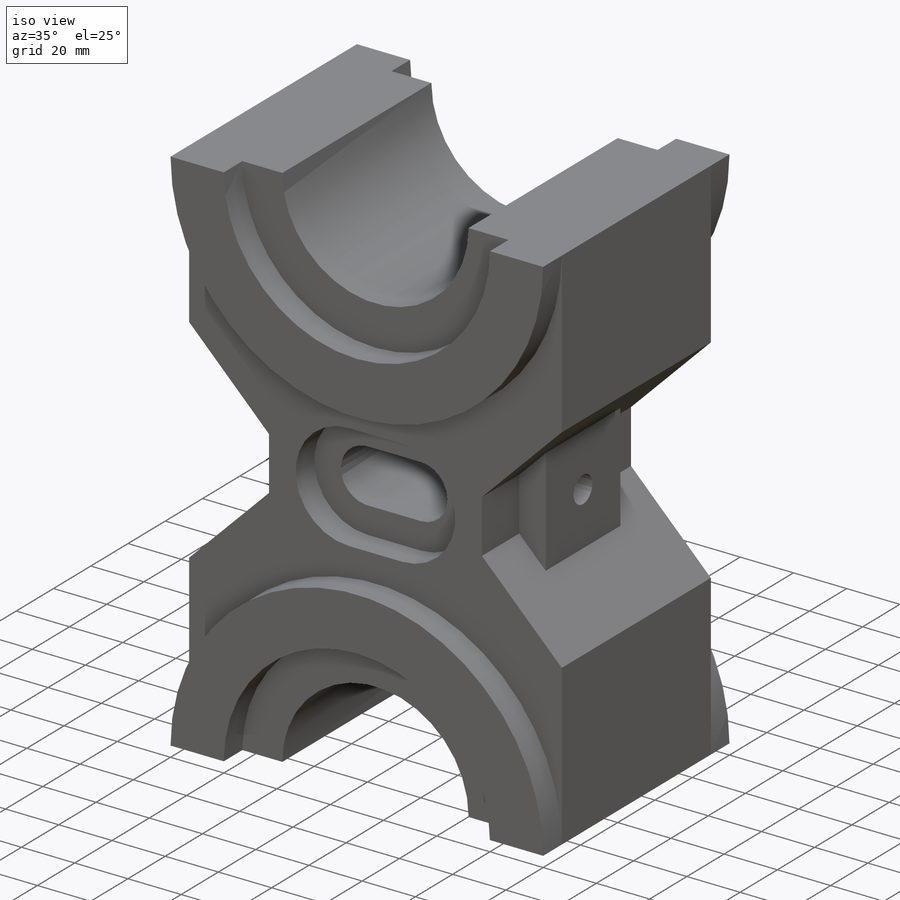
[diagram: iso view]
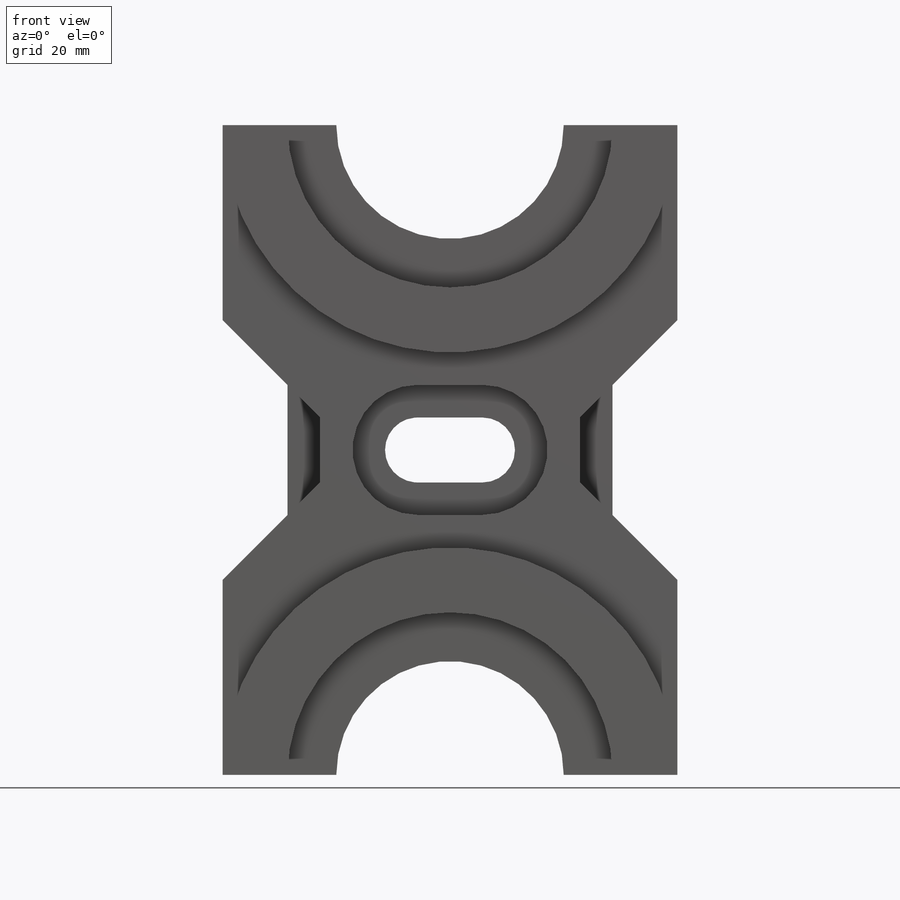
[diagram: front view]
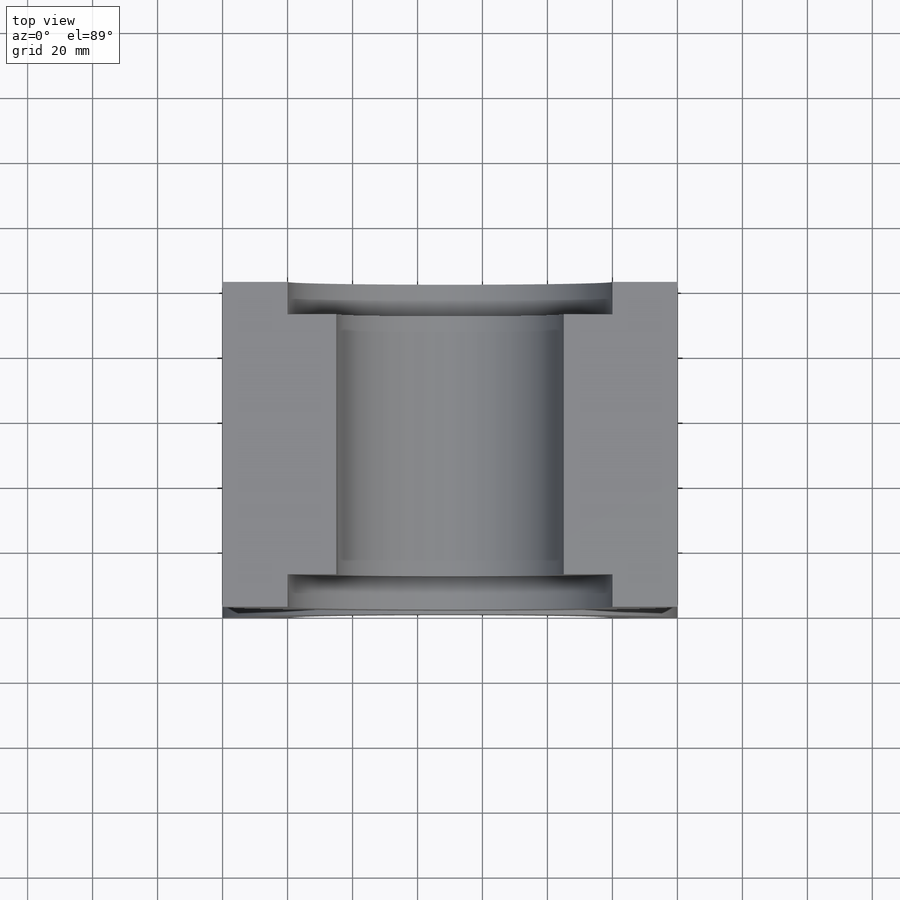
[diagram: top view]
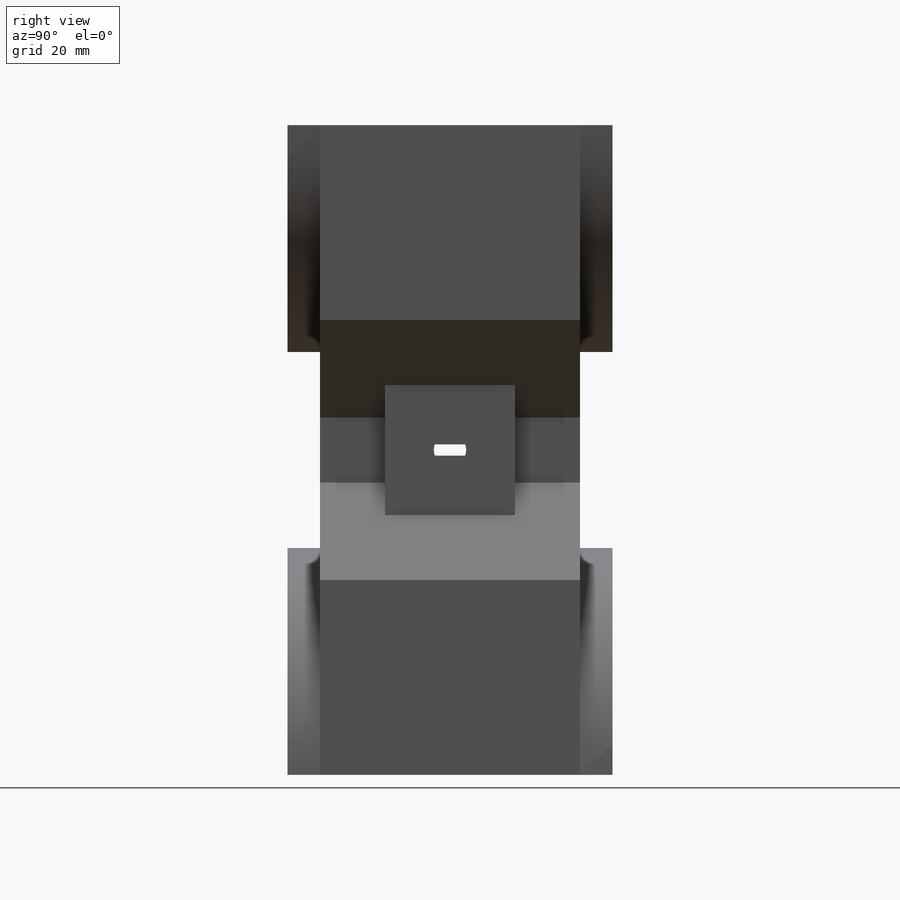
[diagram: right view]
SOLIDWORKS PART (.sldprt)
format: sldprt  version: not decoded by parser v0  size: 670,208 bytes
history: native  units: mm
features: sketch x31, cut_extrude x25, plane x7, extrude x5, material x1 (+13 scaffold rows collapsed)
feature tree (82):
  scaffold x13  (default folders/planes/origin — collapsed)
  material  "Material <not specified>"
  sketch  "Sketch1"  dims[D1=140.0mm D2=200.0mm]
  extrude  "Boss-Extrude1"  Depth=100mm
  sketch  "Sketch2"  dims[D1=60.0mm D2=60.0mm D3=20.0mm D4=20.0mm D5=20.0mm D6=60.0mm D7=60.0mm D8=20.0mm D9=20.0mm D10=20.0mm]
  cut_extrude  "Cut-Extrude1"  Depth=100mm
  plane  "Plane1"  Offset=30mm
  sketch  "Sketch4"  dims[D1=20.0mm D2=10.0mm D3=10.0mm]
  cut_extrude  "Cut-Extrude2"  Depth=100mm
  plane  "Plane2"  Offset=70mm
  sketch  "Sketch9"
  extrude  "Boss-Extrude2"  Depth=10mm
  sketch  "Sketch10"  dims[D1=20.0mm D2=10.0mm D3=10.0mm]
  cut_extrude  "Cut-Extrude7"  Depth=30mm
  sketch  "Sketch11"
  cut_extrude  "Cut-Extrude8"  Depth=10mm
  plane  "Plane3"  Offset=70mm
  sketch  "Sketch13"  dims[D1=20.0mm D2=10.0mm]
  cut_extrude  "Cut-Extrude9"  Depth=50mm
  plane  "Plane4"  Offset=30mm
  sketch  "Sketch14"  dims[D1=20.0mm D2=10.0mm D3=10.0mm]
  cut_extrude  "Cut-Extrude10"  Depth=50mm
  sketch  "Sketch15"  dims[D2=50.0mm D1=20.0mm D3=20.0mm]
  cut_extrude  "Cut-Extrude11"  Depth=10mm
  sketch  "Sketch16"  dims[D1=20.0mm]
  cut_extrude  "Cut-Extrude12"  Depth=10mm
  sketch  "Sketch17"  dims[D1=15.0mm]
  cut_extrude  "Cut-Extrude13"  Depth=141mm
  sketch  "Sketch18"  dims[D1=10.0mm D2=20.0mm D3=20.0mm]
  cut_extrude  "Cut-Extrude15"  Depth=30mm
  sketch  "Sketch19"  dims[D1=10.0mm D2=20.0mm D3=20.0mm]
  cut_extrude  "Cut-Extrude16"  Depth=30mm
  plane  "Plane5"  Offset=20mm
  sketch  "Sketch20"  dims[D1=20.0mm D2=20.0mm D3=29.999mm D4=0.0mm]
  cut_extrude  "Cut-Extrude18"  Depth=60mm
  plane  "Plane6"  Offset=10mm
  sketch  "Sketch21"  dims[D1=20.0mm]
  cut_extrude  "Cut-Extrude19"  Depth=10mm
  plane  "Plane7"  Offset=80mm
  sketch  "Sketch27"  dims[D1=10.0mm D2=80.0mm D3=10.0mm]
  cut_extrude  "Cut-Extrude25"  Depth=177mm
  sketch  "Sketch28"
  cut_extrude  "Cut-Extrude26"  Depth=10mm
  sketch  "Sketch29"  dims[D1=20.0mm D5=10.0mm D6=10.0mm D7=5.0mm]
  sketch  "Sketch30"
  cut_extrude  "Cut-Extrude27"  Depth=10mm
  sketch  "Sketch31"  dims[D2=90.0mm D1=0.0mm]
  extrude  "Boss-Extrude4"  Depth=10mm
  sketch  "Sketch32"  dims[D1=35.0mm D2=35.0mm]
  cut_extrude  "Cut-Extrude28"  Depth=150mm
  sketch  "Sketch33"  dims[D1=10.0mm]
  cut_extrude  "Cut-Extrude29"  Depth=10mm
  sketch  "Sketch34"  dims[D1=35.0mm]
  extrude  "Boss-Extrude5"  Depth=10mm
  sketch  "Sketch35"  dims[D1=15.0mm D2=20.0mm]
  cut_extrude  "Cut-Extrude30"  Depth=10mm
  sketch  "Sketch36"  dims[D1=70.0mm D2=60.0mm]
  cut_extrude  "Cut-Extrude31"  Depth=10mm
  sketch  "Sketch37"
  extrude  "Boss-Extrude6"  Depth=10mm
  sketch  "Sketch38"  dims[D1=20.0mm]
  cut_extrude  "Cut-Extrude32"  Depth=10mm
  sketch  "Sketch39"  dims[D1=10.0mm]
  cut_extrude  "Cut-Extrude33"  Depth=49mm
  sketch  "Sketch40"  dims[D1=20.0mm]
  cut_extrude  "Cut-Extrude34"  Depth=10mm
  sketch  "Sketch43"  dims[D1=10.0mm]
  cut_extrude  "Cut-Extrude42"  Depth=30.15mm
  sketch  "Sketch44"  dims[D1=10.0mm]
  cut_extrude  "Cut-Extrude43"  Depth=30.15mm
decode coverage: 56 of 61 modeling features carry decoded parameters
note: suppression state not decoded; provenance and decode notes live in map.json
